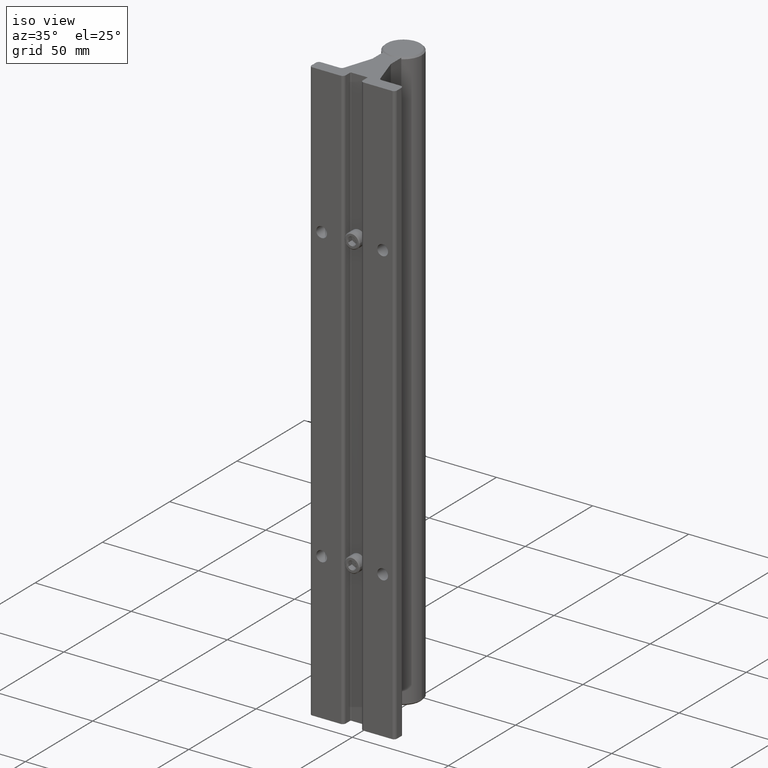
[diagram: clean part render]
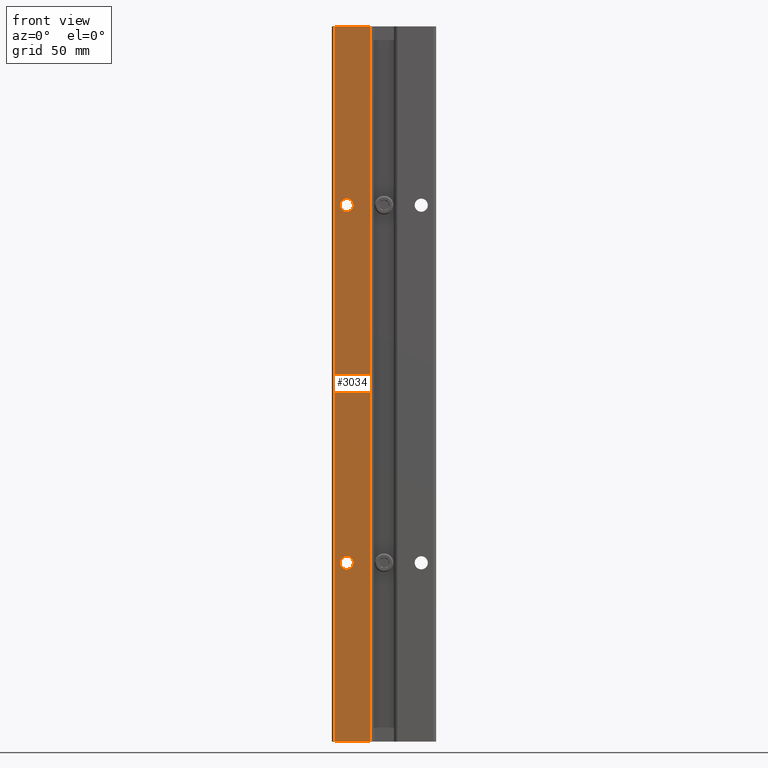
[diagram: tour spotlight — one face highlighted and labeled with its STEP entity id]
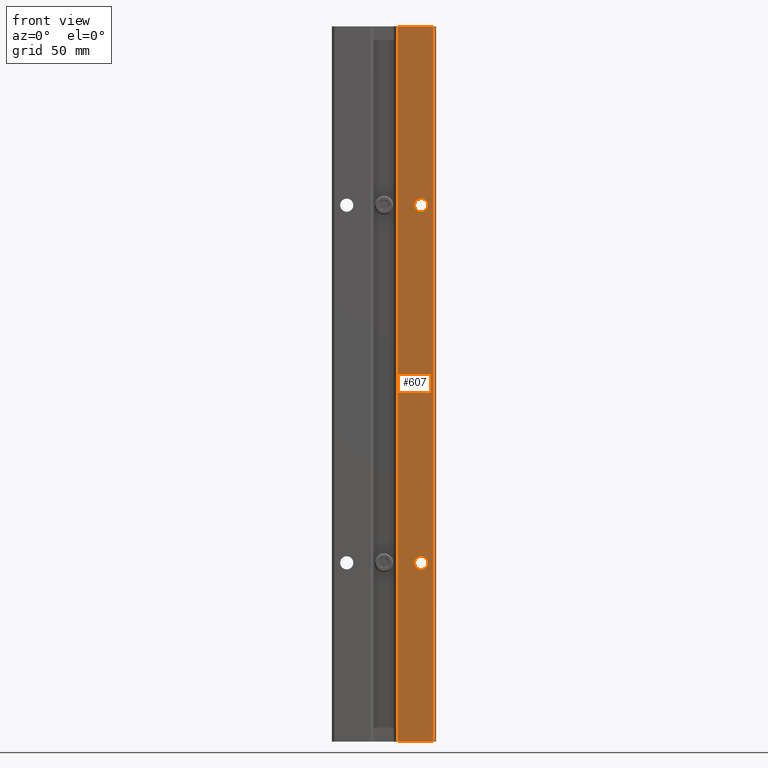
[diagram: tour spotlight — one face highlighted and labeled with its STEP entity id]
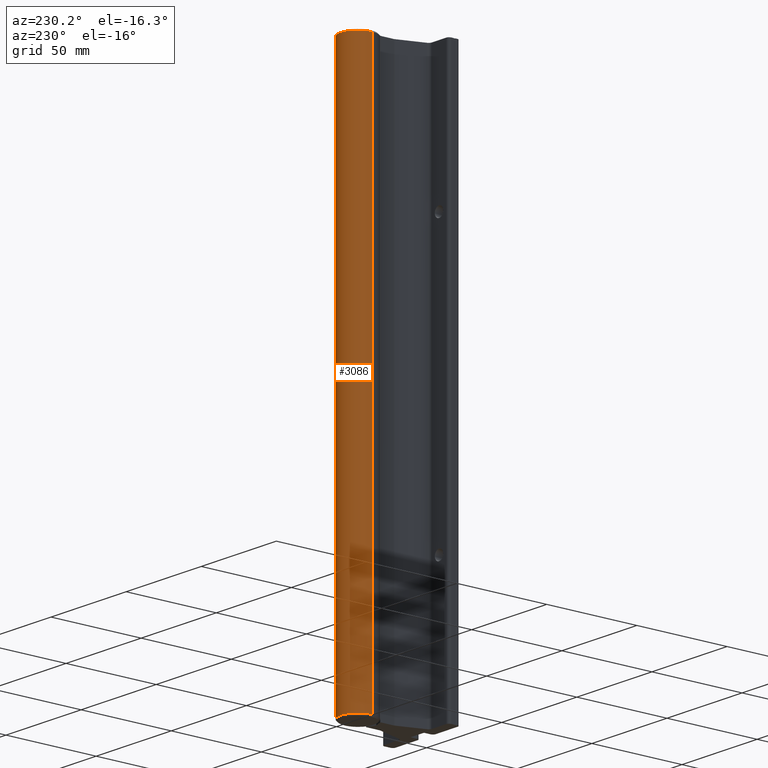
[diagram: tour spotlight — one face highlighted and labeled with its STEP entity id]
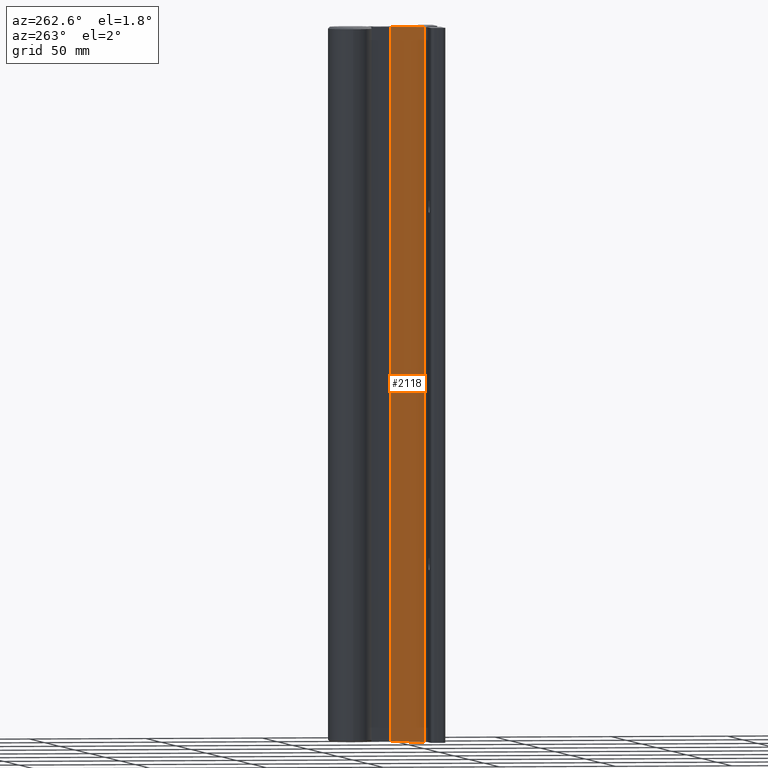
[diagram: tour spotlight — one face highlighted and labeled with its STEP entity id]
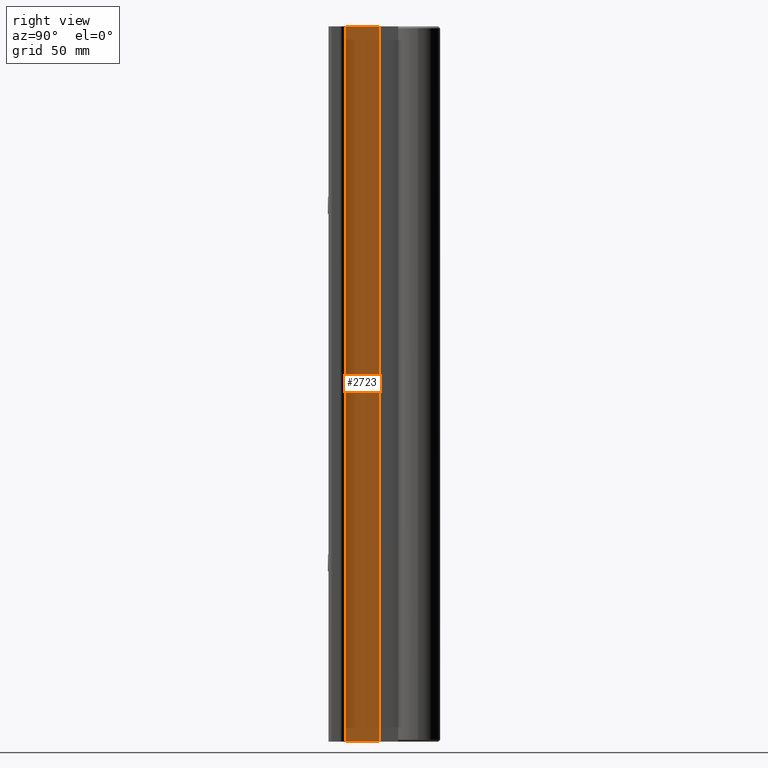
[diagram: tour spotlight — one face highlighted and labeled with its STEP entity id]
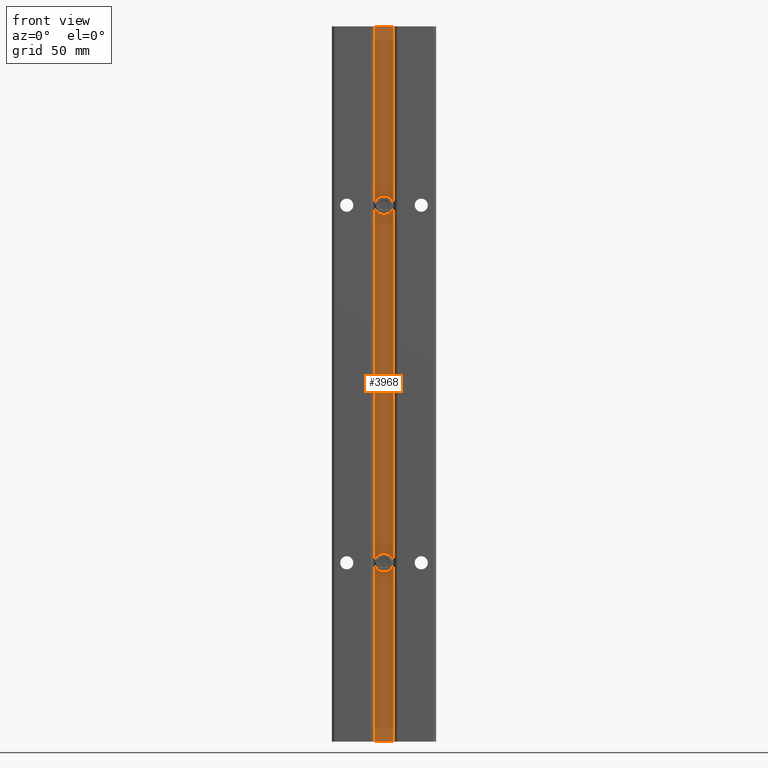
[diagram: tour spotlight — one face highlighted and labeled with its STEP entity id]
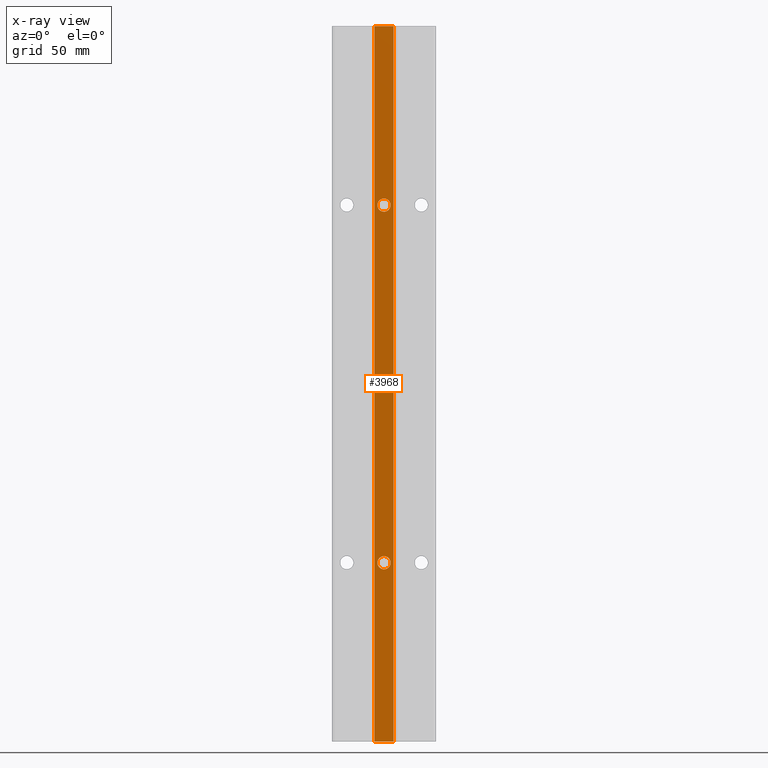
[diagram: x-ray of the same camera — body ghosted, this tour face saturated]
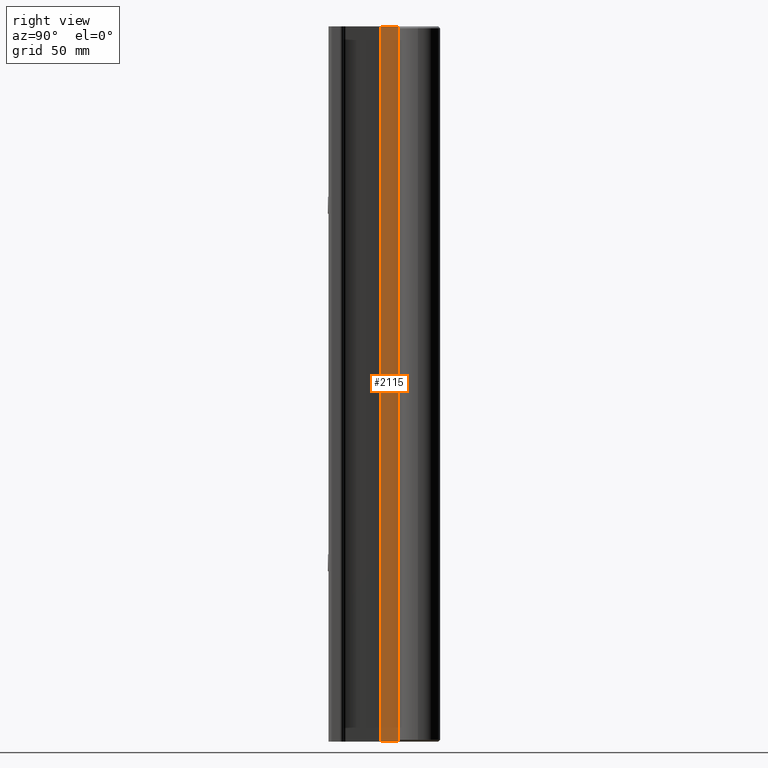
[diagram: tour spotlight — one face highlighted and labeled with its STEP entity id]
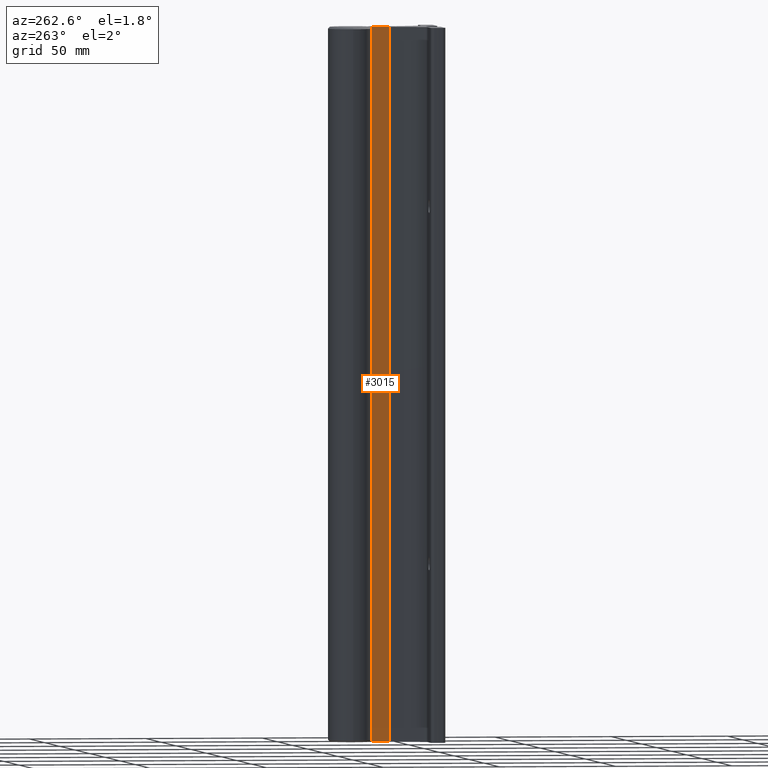
[diagram: tour spotlight — one face highlighted and labeled with its STEP entity id]
A machine part: a face-by-face anatomy tour. The part has 125 B-rep faces; the first image is the clean iso view, then the 8 largest visible faces are spotlighted one at a time (largest first), each with its STEP entity span.

Face 1 — front view, entity #3034. In plain terms, the highlighted planar face has unit normal (0, 1, 0).
Definition (entity closure, byte-faithful):
#26 = EDGE_CURVE ( 'NONE', #2960, #3686, #106, .T. ) ;
#106 = CIRCLE ( 'NONE', #3881, 0.1104999999999998206 ) ;
#176 = DIRECTION ( 'NONE',  ( 1.000000000000000000, 0.0000000000000000000, 0.0000000000000000000 ) ) ;
#275 = VECTOR ( 'NONE', #176, 39.37007874015748143 ) ;
#336 = DIRECTION ( 'NONE',  ( -1.000000000000000000, 0.0000000000000000000, 0.0000000000000000000 ) ) ;
#428 = FACE_BOUND ( 'NONE', #2647, .T. ) ;
#455 = DIRECTION ( 'NONE',  ( 0.0000000000000000000, 0.0000000000000000000, 1.000000000000000000 ) ) ;
#499 = CARTESIAN_POINT ( 'NONE',  ( -0.6250000000000000000, 0.0000000000000000000, -9.110500000000001819 ) ) ;
#697 = VERTEX_POINT ( 'NONE', #1507 ) ;
#698 = DIRECTION ( 'NONE',  ( 0.0000000000000000000, 0.0000000000000000000, 1.000000000000000000 ) ) ;
#701 = DIRECTION ( 'NONE',  ( 0.0000000000000000000, 1.000000000000000000, 0.0000000000000000000 ) ) ;
#855 = EDGE_LOOP ( 'NONE', ( #3131, #3900, #3914, #1022 ) ) ;
#883 = VERTEX_POINT ( 'NONE', #1290 ) ;
#1022 = ORIENTED_EDGE ( 'NONE', *, *, #3777, .T. ) ;
#1103 = DIRECTION ( 'NONE',  ( 0.0000000000000000000, 0.0000000000000000000, 1.000000000000000000 ) ) ;
#1130 = LINE ( 'NONE', #2072, #275 ) ;
#1149 = DIRECTION ( 'NONE',  ( 0.0000000000000000000, 1.000000000000000000, 0.0000000000000000000 ) ) ;
#1178 = LINE ( 'NONE', #3087, #2106 ) ;
#1290 = CARTESIAN_POINT ( 'NONE',  ( -0.2244203811574921603, 0.0000000000000000000, 0.0000000000000000000 ) ) ;
#1356 = AXIS2_PLACEMENT_3D ( 'NONE', #3583, #1149, #1103 ) ;
#1407 = CIRCLE ( 'NONE', #1356, 0.1104999999999998206 ) ;
#1507 = CARTESIAN_POINT ( 'NONE',  ( -0.8255796188425061910, -1.195183497228115035E-16, 0.0000000000000000000 ) ) ;
#1556 = VECTOR ( 'NONE', #455, 39.37007874015748143 ) ;
#1562 = CIRCLE ( 'NONE', #3759, 0.1104999999999998206 ) ;
#1585 = CARTESIAN_POINT ( 'NONE',  ( -0.6250000000000000000, 0.0000000000000000000, -8.889500000000001734 ) ) ;
#1692 = DIRECTION ( 'NONE',  ( 0.0000000000000000000, 1.000000000000000000, 0.0000000000000000000 ) ) ;
#1886 = EDGE_LOOP ( 'NONE', ( #3892, #3366 ) ) ;
#1977 = CARTESIAN_POINT ( 'NONE',  ( -0.6250000000000000000, 0.0000000000000000000, -2.889500000000000401 ) ) ;
#2020 = CARTESIAN_POINT ( 'NONE',  ( -0.6250000000000000000, 0.0000000000000000000, -3.000000000000000444 ) ) ;
#2072 = CARTESIAN_POINT ( 'NONE',  ( -2.500000000000000000, 0.0000000000000000000, 0.0000000000000000000 ) ) ;
#2106 = VECTOR ( 'NONE', #336, 39.37007874015748143 ) ;
#2322 = CARTESIAN_POINT ( 'NONE',  ( -0.2244203811574920215, 0.0000000000000000000, -14.10463218188033174 ) ) ;
#2427 = CARTESIAN_POINT ( 'NONE',  ( -0.2244203811574920215, 0.0000000000000000000, -12.00000000000000178 ) ) ;
#2501 = CARTESIAN_POINT ( 'NONE',  ( -0.8255796188425068571, -2.027543432797695280E-17, -12.00000000000000178 ) ) ;
#2552 = EDGE_CURVE ( 'NONE', #3396, #3558, #1407, .T. ) ;
#2571 = DIRECTION ( 'NONE',  ( 0.0000000000000000000, 0.0000000000000000000, 1.000000000000000000 ) ) ;
#2647 = EDGE_LOOP ( 'NONE', ( #3057, #3626 ) ) ;
#2724 = FACE_OUTER_BOUND ( 'NONE', #855, .T. ) ;
#2739 = EDGE_CURVE ( 'NONE', #4019, #2843, #1178, .T. ) ;
#2762 = VECTOR ( 'NONE', #698, 39.37007874015748143 ) ;
#2843 = VERTEX_POINT ( 'NONE', #2501 ) ;
#2888 = CARTESIAN_POINT ( 'NONE',  ( -0.6250000000000000000, 0.0000000000000000000, -3.000000000000000444 ) ) ;
#2892 = CARTESIAN_POINT ( 'NONE',  ( -2.500000000000000000, 0.0000000000000000000, 0.1250000000000000000 ) ) ;
#2944 = DIRECTION ( 'NONE',  ( 0.0000000000000000000, 1.000000000000000000, 0.0000000000000000000 ) ) ;
#2955 = CIRCLE ( 'NONE', #3263, 0.1104999999999998206 ) ;
#2960 = VERTEX_POINT ( 'NONE', #3459 ) ;
#3000 = FACE_BOUND ( 'NONE', #1886, .T. ) ;
#3034 = ADVANCED_FACE ( 'NONE', ( #3000, #428, #2724 ), #3243, .F. ) ;
#3057 = ORIENTED_EDGE ( 'NONE', *, *, #26, .T. ) ;
#3059 = AXIS2_PLACEMENT_3D ( 'NONE', #2892, #1692, #3874 ) ;
#3087 = CARTESIAN_POINT ( 'NONE',  ( -0.8255796188425068571, 0.0000000000000000000, -12.00000000000000178 ) ) ;
#3089 = LINE ( 'NONE', #2322, #1556 ) ;
#3131 = ORIENTED_EDGE ( 'NONE', *, *, #3324, .F. ) ;
#3165 = DIRECTION ( 'NONE',  ( 0.0000000000000000000, 1.000000000000000000, 0.0000000000000000000 ) ) ;
#3173 = EDGE_CURVE ( 'NONE', #3558, #3396, #1562, .T. ) ;
#3243 = PLANE ( 'NONE',  #3059 ) ;
#3263 = AXIS2_PLACEMENT_3D ( 'NONE', #2020, #2944, #3887 ) ;
#3304 = EDGE_CURVE ( 'NONE', #3686, #2960, #2955, .T. ) ;
#3324 = EDGE_CURVE ( 'NONE', #697, #883, #1130, .T. ) ;
#3366 = ORIENTED_EDGE ( 'NONE', *, *, #3173, .T. ) ;
#3396 = VERTEX_POINT ( 'NONE', #499 ) ;
#3459 = CARTESIAN_POINT ( 'NONE',  ( -0.6250000000000000000, 0.0000000000000000000, -3.110500000000000043 ) ) ;
#3480 = CARTESIAN_POINT ( 'NONE',  ( -0.8255796188425068571, 0.0000000000000000000, -14.10463218188033174 ) ) ;
#3558 = VERTEX_POINT ( 'NONE', #1585 ) ;
#3583 = CARTESIAN_POINT ( 'NONE',  ( -0.6250000000000000000, 0.0000000000000000000, -9.000000000000001776 ) ) ;
#3626 = ORIENTED_EDGE ( 'NONE', *, *, #3304, .T. ) ;
#3686 = VERTEX_POINT ( 'NONE', #1977 ) ;
#3735 = EDGE_CURVE ( 'NONE', #2843, #697, #3781, .T. ) ;
#3759 = AXIS2_PLACEMENT_3D ( 'NONE', #3811, #3165, #2571 ) ;
#3777 = EDGE_CURVE ( 'NONE', #4019, #883, #3089, .T. ) ;
#3781 = LINE ( 'NONE', #3480, #2762 ) ;
#3811 = CARTESIAN_POINT ( 'NONE',  ( -0.6250000000000000000, 0.0000000000000000000, -9.000000000000001776 ) ) ;
#3818 = DIRECTION ( 'NONE',  ( 0.0000000000000000000, 0.0000000000000000000, 1.000000000000000000 ) ) ;
#3874 = DIRECTION ( 'NONE',  ( 0.0000000000000000000, -0.0000000000000000000, 1.000000000000000000 ) ) ;
#3881 = AXIS2_PLACEMENT_3D ( 'NONE', #2888, #701, #3818 ) ;
#3887 = DIRECTION ( 'NONE',  ( 0.0000000000000000000, 0.0000000000000000000, 1.000000000000000000 ) ) ;
#3892 = ORIENTED_EDGE ( 'NONE', *, *, #2552, .T. ) ;
#3900 = ORIENTED_EDGE ( 'NONE', *, *, #3735, .F. ) ;
#3914 = ORIENTED_EDGE ( 'NONE', *, *, #2739, .F. ) ;
#4019 = VERTEX_POINT ( 'NONE', #2427 ) ;

Face 2 — front view, entity #607. In plain terms, the highlighted planar face has unit normal (0, 1, 0).
Definition (entity closure, byte-faithful):
#3 = CARTESIAN_POINT ( 'NONE',  ( 0.2244203811574917440, 4.268512490100411279E-18, -12.00000000000000178 ) ) ;
#72 = CARTESIAN_POINT ( 'NONE',  ( 0.2244203811574917440, 0.0000000000000000000, -12.00000000000000178 ) ) ;
#86 = VERTEX_POINT ( 'NONE', #3257 ) ;
#103 = VECTOR ( 'NONE', #351, 39.37007874015748143 ) ;
#105 = VERTEX_POINT ( 'NONE', #1395 ) ;
#109 = DIRECTION ( 'NONE',  ( 0.0000000000000000000, 0.0000000000000000000, 1.000000000000000000 ) ) ;
#141 = LINE ( 'NONE', #1329, #3339 ) ;
#207 = CARTESIAN_POINT ( 'NONE',  ( 0.6250000000000000000, 0.0000000000000000000, -2.889500000000000401 ) ) ;
#223 = EDGE_CURVE ( 'NONE', #86, #3704, #1817, .T. ) ;
#351 = DIRECTION ( 'NONE',  ( 0.0000000000000000000, 0.0000000000000000000, 1.000000000000000000 ) ) ;
#362 = DIRECTION ( 'NONE',  ( 0.0000000000000000000, 1.000000000000000000, 0.0000000000000000000 ) ) ;
#370 = CARTESIAN_POINT ( 'NONE',  ( 0.2244203811574917440, 0.0000000000000000000, -14.10463218188033174 ) ) ;
#434 = FACE_BOUND ( 'NONE', #672, .T. ) ;
#443 = DIRECTION ( 'NONE',  ( 0.0000000000000000000, -0.0000000000000000000, 1.000000000000000000 ) ) ;
#508 = EDGE_LOOP ( 'NONE', ( #679, #2270, #3504, #2215 ) ) ;
#514 = EDGE_CURVE ( 'NONE', #1157, #105, #927, .T. ) ;
#570 = ORIENTED_EDGE ( 'NONE', *, *, #2423, .T. ) ;
#577 = CARTESIAN_POINT ( 'NONE',  ( -2.500000000000000000, 0.0000000000000000000, 0.0000000000000000000 ) ) ;
#605 = VERTEX_POINT ( 'NONE', #793 ) ;
#607 = ADVANCED_FACE ( 'NONE', ( #2726, #434, #3346 ), #3512, .F. ) ;
#672 = EDGE_LOOP ( 'NONE', ( #570, #3501 ) ) ;
#679 = ORIENTED_EDGE ( 'NONE', *, *, #2075, .F. ) ;
#793 = CARTESIAN_POINT ( 'NONE',  ( 0.8255796188425064130, 0.0000000000000000000, -12.00000000000000178 ) ) ;
#819 = AXIS2_PLACEMENT_3D ( 'NONE', #2036, #2927, #109 ) ;
#927 = LINE ( 'NONE', #370, #103 ) ;
#951 = VERTEX_POINT ( 'NONE', #207 ) ;
#970 = CARTESIAN_POINT ( 'NONE',  ( 0.6250000000000000000, 0.0000000000000000000, -3.110500000000000043 ) ) ;
#995 = CARTESIAN_POINT ( 'NONE',  ( 0.8255796188425067461, 0.0000000000000000000, 0.0000000000000000000 ) ) ;
#1105 = EDGE_CURVE ( 'NONE', #3704, #86, #2384, .T. ) ;
#1110 = DIRECTION ( 'NONE',  ( 0.0000000000000000000, 1.000000000000000000, 0.0000000000000000000 ) ) ;
#1157 = VERTEX_POINT ( 'NONE', #3 ) ;
#1234 = DIRECTION ( 'NONE',  ( 0.0000000000000000000, 1.000000000000000000, 0.0000000000000000000 ) ) ;
#1265 = CIRCLE ( 'NONE', #2520, 0.1104999999999998206 ) ;
#1293 = LINE ( 'NONE', #72, #3978 ) ;
#1329 = CARTESIAN_POINT ( 'NONE',  ( 0.8255796188425064130, 0.0000000000000000000, -14.10463218188033174 ) ) ;
#1395 = CARTESIAN_POINT ( 'NONE',  ( 0.2244203811574911334, 1.109813247426106994E-16, 0.0000000000000000000 ) ) ;
#1480 = DIRECTION ( 'NONE',  ( 1.000000000000000000, 0.0000000000000000000, 0.0000000000000000000 ) ) ;
#1513 = LINE ( 'NONE', #577, #1708 ) ;
#1603 = EDGE_CURVE ( 'NONE', #605, #2943, #141, .T. ) ;
#1708 = VECTOR ( 'NONE', #1480, 39.37007874015748143 ) ;
#1728 = CARTESIAN_POINT ( 'NONE',  ( -2.500000000000000000, 0.0000000000000000000, 0.1250000000000000000 ) ) ;
#1738 = AXIS2_PLACEMENT_3D ( 'NONE', #1728, #1110, #443 ) ;
#1817 = CIRCLE ( 'NONE', #819, 0.1104999999999998206 ) ;
#1828 = CARTESIAN_POINT ( 'NONE',  ( 0.6250000000000000000, 0.0000000000000000000, -9.000000000000001776 ) ) ;
#1981 = DIRECTION ( 'NONE',  ( -1.000000000000000000, 0.0000000000000000000, 0.0000000000000000000 ) ) ;
#2036 = CARTESIAN_POINT ( 'NONE',  ( 0.6250000000000000000, 0.0000000000000000000, -9.000000000000001776 ) ) ;
#2075 = EDGE_CURVE ( 'NONE', #105, #2943, #1513, .T. ) ;
#2215 = ORIENTED_EDGE ( 'NONE', *, *, #1603, .T. ) ;
#2232 = DIRECTION ( 'NONE',  ( 0.0000000000000000000, 0.0000000000000000000, 1.000000000000000000 ) ) ;
#2270 = ORIENTED_EDGE ( 'NONE', *, *, #514, .F. ) ;
#2384 = CIRCLE ( 'NONE', #2835, 0.1104999999999998206 ) ;
#2386 = VERTEX_POINT ( 'NONE', #970 ) ;
#2423 = EDGE_CURVE ( 'NONE', #2386, #951, #2471, .T. ) ;
#2471 = CIRCLE ( 'NONE', #3216, 0.1104999999999998206 ) ;
#2520 = AXIS2_PLACEMENT_3D ( 'NONE', #2785, #3746, #3710 ) ;
#2726 = FACE_BOUND ( 'NONE', #2885, .T. ) ;
#2785 = CARTESIAN_POINT ( 'NONE',  ( 0.6250000000000000000, 0.0000000000000000000, -3.000000000000000444 ) ) ;
#2826 = EDGE_CURVE ( 'NONE', #951, #2386, #1265, .T. ) ;
#2835 = AXIS2_PLACEMENT_3D ( 'NONE', #1828, #1234, #3706 ) ;
#2849 = DIRECTION ( 'NONE',  ( 0.0000000000000000000, 0.0000000000000000000, 1.000000000000000000 ) ) ;
#2881 = CARTESIAN_POINT ( 'NONE',  ( 0.6250000000000000000, 0.0000000000000000000, -9.110500000000001819 ) ) ;
#2885 = EDGE_LOOP ( 'NONE', ( #3404, #2983 ) ) ;
#2927 = DIRECTION ( 'NONE',  ( 0.0000000000000000000, 1.000000000000000000, 0.0000000000000000000 ) ) ;
#2943 = VERTEX_POINT ( 'NONE', #995 ) ;
#2983 = ORIENTED_EDGE ( 'NONE', *, *, #223, .T. ) ;
#3110 = EDGE_CURVE ( 'NONE', #605, #1157, #1293, .T. ) ;
#3216 = AXIS2_PLACEMENT_3D ( 'NONE', #3776, #362, #2849 ) ;
#3257 = CARTESIAN_POINT ( 'NONE',  ( 0.6250000000000000000, 0.0000000000000000000, -8.889500000000001734 ) ) ;
#3339 = VECTOR ( 'NONE', #2232, 39.37007874015748143 ) ;
#3346 = FACE_OUTER_BOUND ( 'NONE', #508, .T. ) ;
#3404 = ORIENTED_EDGE ( 'NONE', *, *, #1105, .T. ) ;
#3501 = ORIENTED_EDGE ( 'NONE', *, *, #2826, .T. ) ;
#3504 = ORIENTED_EDGE ( 'NONE', *, *, #3110, .F. ) ;
#3512 = PLANE ( 'NONE',  #1738 ) ;
#3704 = VERTEX_POINT ( 'NONE', #2881 ) ;
#3706 = DIRECTION ( 'NONE',  ( 0.0000000000000000000, 0.0000000000000000000, 1.000000000000000000 ) ) ;
#3710 = DIRECTION ( 'NONE',  ( 0.0000000000000000000, 0.0000000000000000000, 1.000000000000000000 ) ) ;
#3746 = DIRECTION ( 'NONE',  ( 0.0000000000000000000, 1.000000000000000000, 0.0000000000000000000 ) ) ;
#3776 = CARTESIAN_POINT ( 'NONE',  ( 0.6250000000000000000, 0.0000000000000000000, -3.000000000000000444 ) ) ;
#3978 = VECTOR ( 'NONE', #1981, 39.37007874015748143 ) ;

Face 3 — auxiliary view, entity #3086. In plain terms, the highlighted cylindrical surface (edge-blend (fillet) strip) has radius 9.525 mm, axis along (0, 0, 1).
Definition (entity closure, byte-faithful):
#11 = VERTEX_POINT ( 'NONE', #1317 ) ;
#28 = CARTESIAN_POINT ( 'NONE',  ( 0.0000000000000000000, 1.499999999999999778, -11.96874999999999645 ) ) ;
#41 = DIRECTION ( 'NONE',  ( 1.000000000000000000, 0.0000000000000000000, 0.0000000000000000000 ) ) ;
#89 = AXIS2_PLACEMENT_3D ( 'NONE', #3127, #1602, #3425 ) ;
#160 = EDGE_CURVE ( 'NONE', #1448, #1140, #1864, .T. ) ;
#245 = CARTESIAN_POINT ( 'NONE',  ( 0.3749999999999999445, 1.499999999999999778, -0.03124999999999929223 ) ) ;
#248 = EDGE_CURVE ( 'NONE', #11, #2125, #831, .T. ) ;
#269 = CIRCLE ( 'NONE', #89, 0.3749999999999999445 ) ;
#461 = ORIENTED_EDGE ( 'NONE', *, *, #1387, .T. ) ;
#664 = CARTESIAN_POINT ( 'NONE',  ( -0.3749999999999999445, 1.499999999999999778, -11.96874999999999645 ) ) ;
#770 = DIRECTION ( 'NONE',  ( 1.000000000000000000, 0.0000000000000000000, 0.0000000000000000000 ) ) ;
#831 = LINE ( 'NONE', #2337, #2540 ) ;
#873 = EDGE_LOOP ( 'NONE', ( #461, #3617, #2867, #2779 ) ) ;
#1140 = VERTEX_POINT ( 'NONE', #3071 ) ;
#1153 = CARTESIAN_POINT ( 'NONE',  ( -0.3749999999999999445, 1.499999999999999778, -11.99999999999999822 ) ) ;
#1284 = EDGE_CURVE ( 'NONE', #1140, #2125, #269, .T. ) ;
#1317 = CARTESIAN_POINT ( 'NONE',  ( 0.3749999999999999445, 1.499999999999999778, -11.96874999999999645 ) ) ;
#1387 = EDGE_CURVE ( 'NONE', #11, #1448, #2673, .T. ) ;
#1448 = VERTEX_POINT ( 'NONE', #664 ) ;
#1521 = CYLINDRICAL_SURFACE ( 'NONE', #1753, 0.3749999999999999445 ) ;
#1602 = DIRECTION ( 'NONE',  ( 0.0000000000000000000, 0.0000000000000000000, -1.000000000000000000 ) ) ;
#1680 = DIRECTION ( 'NONE',  ( 0.0000000000000000000, 0.0000000000000000000, 1.000000000000000000 ) ) ;
#1753 = AXIS2_PLACEMENT_3D ( 'NONE', #3508, #1680, #770 ) ;
#1864 = LINE ( 'NONE', #1153, #3001 ) ;
#2125 = VERTEX_POINT ( 'NONE', #245 ) ;
#2337 = CARTESIAN_POINT ( 'NONE',  ( 0.3749999999999999445, 1.499999999999999778, -11.99999999999999822 ) ) ;
#2526 = FACE_OUTER_BOUND ( 'NONE', #873, .T. ) ;
#2540 = VECTOR ( 'NONE', #2632, 39.37007874015748143 ) ;
#2632 = DIRECTION ( 'NONE',  ( 0.0000000000000000000, 0.0000000000000000000, 1.000000000000000000 ) ) ;
#2673 = CIRCLE ( 'NONE', #2744, 0.3749999999999999445 ) ;
#2693 = DIRECTION ( 'NONE',  ( 0.0000000000000000000, 0.0000000000000000000, 1.000000000000000000 ) ) ;
#2744 = AXIS2_PLACEMENT_3D ( 'NONE', #28, #2846, #41 ) ;
#2779 = ORIENTED_EDGE ( 'NONE', *, *, #248, .F. ) ;
#2846 = DIRECTION ( 'NONE',  ( -0.0000000000000000000, -0.0000000000000000000, 1.000000000000000000 ) ) ;
#2867 = ORIENTED_EDGE ( 'NONE', *, *, #1284, .T. ) ;
#3001 = VECTOR ( 'NONE', #2693, 39.37007874015748143 ) ;
#3071 = CARTESIAN_POINT ( 'NONE',  ( -0.3749999999999999445, 1.499999999999999778, -0.03124999999999929223 ) ) ;
#3086 = ADVANCED_FACE ( 'NONE', ( #2526 ), #1521, .T. ) ;
#3127 = CARTESIAN_POINT ( 'NONE',  ( 0.0000000000000000000, 1.499999999999999778, -0.03124999999999929223 ) ) ;
#3425 = DIRECTION ( 'NONE',  ( 1.000000000000000000, 0.0000000000000000000, 0.0000000000000000000 ) ) ;
#3508 = CARTESIAN_POINT ( 'NONE',  ( 0.0000000000000000000, 1.499999999999999778, -11.99999999999999822 ) ) ;
#3617 = ORIENTED_EDGE ( 'NONE', *, *, #160, .T. ) ;

Face 4 — auxiliary view, entity #2118. In plain terms, the highlighted planar face has unit normal (-0.9511, 0.309, 0).
Definition (entity closure, byte-faithful):
#93 = DIRECTION ( 'NONE',  ( 0.3090169943511710260, 0.9510565163028790181, -0.0000000000000000000 ) ) ;
#638 = CARTESIAN_POINT ( 'NONE',  ( -0.1905589677000024129, 0.8519652309999998785, -12.00000000000000178 ) ) ;
#895 = DIRECTION ( 'NONE',  ( -0.3090169943511710260, -0.9510565163028790181, 0.0000000000000000000 ) ) ;
#925 = ORIENTED_EDGE ( 'NONE', *, *, #2707, .F. ) ;
#973 = LINE ( 'NONE', #2694, #3343 ) ;
#1082 = EDGE_CURVE ( 'NONE', #1553, #2487, #1803, .T. ) ;
#1119 = VERTEX_POINT ( 'NONE', #638 ) ;
#1124 = LINE ( 'NONE', #1699, #2234 ) ;
#1167 = DIRECTION ( 'NONE',  ( -0.3090169943511710260, -0.9510565163028790181, 0.0000000000000000000 ) ) ;
#1227 = ORIENTED_EDGE ( 'NONE', *, *, #1082, .F. ) ;
#1401 = ORIENTED_EDGE ( 'NONE', *, *, #3372, .T. ) ;
#1463 = PLANE ( 'NONE',  #1729 ) ;
#1516 = VECTOR ( 'NONE', #895, 39.37007874015748143 ) ;
#1535 = VERTEX_POINT ( 'NONE', #3125 ) ;
#1553 = VERTEX_POINT ( 'NONE', #2828 ) ;
#1699 = CARTESIAN_POINT ( 'NONE',  ( -0.1905589677000024129, 0.8519652309999998785, -12.00000000000000178 ) ) ;
#1729 = AXIS2_PLACEMENT_3D ( 'NONE', #2421, #3974, #1167 ) ;
#1803 = LINE ( 'NONE', #3684, #1516 ) ;
#1845 = CARTESIAN_POINT ( 'NONE',  ( -0.1905589677000024129, 0.8519652309999998785, -14.10463218188033174 ) ) ;
#1896 = VECTOR ( 'NONE', #3999, 39.37007874015748143 ) ;
#2047 = CARTESIAN_POINT ( 'NONE',  ( -0.3721172034000003737, 0.2931864378999993193, 0.0000000000000000000 ) ) ;
#2118 = ADVANCED_FACE ( 'NONE', ( #2325 ), #1463, .T. ) ;
#2234 = VECTOR ( 'NONE', #93, 39.37007874015748143 ) ;
#2325 = FACE_OUTER_BOUND ( 'NONE', #2666, .T. ) ;
#2421 = CARTESIAN_POINT ( 'NONE',  ( -0.1905589677000024129, 0.8519652309999998785, -14.10463218188033174 ) ) ;
#2487 = VERTEX_POINT ( 'NONE', #2047 ) ;
#2666 = EDGE_LOOP ( 'NONE', ( #3167, #1401, #1227, #925 ) ) ;
#2694 = CARTESIAN_POINT ( 'NONE',  ( -0.3721172034000003181, 0.2931864378999993193, -14.10463218188033174 ) ) ;
#2707 = EDGE_CURVE ( 'NONE', #1119, #1553, #2993, .T. ) ;
#2828 = CARTESIAN_POINT ( 'NONE',  ( -0.1905589677000024129, 0.8519652309999998785, 0.0000000000000000000 ) ) ;
#2993 = LINE ( 'NONE', #1845, #1896 ) ;
#3125 = CARTESIAN_POINT ( 'NONE',  ( -0.3721172034000003181, 0.2931864378999994303, -12.00000000000000178 ) ) ;
#3167 = ORIENTED_EDGE ( 'NONE', *, *, #3709, .F. ) ;
#3343 = VECTOR ( 'NONE', #3644, 39.37007874015748143 ) ;
#3372 = EDGE_CURVE ( 'NONE', #1535, #2487, #973, .T. ) ;
#3644 = DIRECTION ( 'NONE',  ( 0.0000000000000000000, 0.0000000000000000000, 1.000000000000000000 ) ) ;
#3684 = CARTESIAN_POINT ( 'NONE',  ( -0.1905589677000024129, 0.8519652309999998785, 0.0000000000000000000 ) ) ;
#3709 = EDGE_CURVE ( 'NONE', #1535, #1119, #1124, .T. ) ;
#3974 = DIRECTION ( 'NONE',  ( -0.9510565163028790181, 0.3090169943511710260, 0.0000000000000000000 ) ) ;
#3999 = DIRECTION ( 'NONE',  ( 0.0000000000000000000, 0.0000000000000000000, 1.000000000000000000 ) ) ;

Face 5 — right view, entity #2723. In plain terms, the highlighted planar face has unit normal (0.9511, 0.309, 0).
Definition (entity closure, byte-faithful):
#17 = CARTESIAN_POINT ( 'NONE',  ( 0.3721172034999985501, 0.2931864378999994303, -14.10463218188033174 ) ) ;
#35 = EDGE_CURVE ( 'NONE', #149, #3419, #744, .T. ) ;
#149 = VERTEX_POINT ( 'NONE', #507 ) ;
#228 = LINE ( 'NONE', #3543, #733 ) ;
#330 = FACE_OUTER_BOUND ( 'NONE', #3244, .T. ) ;
#333 = LINE ( 'NONE', #423, #2194 ) ;
#392 = ORIENTED_EDGE ( 'NONE', *, *, #568, .F. ) ;
#423 = CARTESIAN_POINT ( 'NONE',  ( 0.3721172034999985501, 0.2931864378999994303, -12.00000000000000178 ) ) ;
#467 = ORIENTED_EDGE ( 'NONE', *, *, #35, .T. ) ;
#507 = CARTESIAN_POINT ( 'NONE',  ( 0.1905589676999998316, 0.8519652309999988793, -12.00000000000000178 ) ) ;
#568 = EDGE_CURVE ( 'NONE', #632, #2556, #2732, .T. ) ;
#574 = EDGE_CURVE ( 'NONE', #149, #632, #333, .T. ) ;
#632 = VERTEX_POINT ( 'NONE', #1975 ) ;
#733 = VECTOR ( 'NONE', #2276, 39.37007874015748854 ) ;
#744 = LINE ( 'NONE', #1010, #2392 ) ;
#1010 = CARTESIAN_POINT ( 'NONE',  ( 0.1905589676999998316, 0.8519652309999988793, -14.10463218188033174 ) ) ;
#1049 = CARTESIAN_POINT ( 'NONE',  ( 0.3721172034999984390, 0.2931864378999994303, -14.10463218188033174 ) ) ;
#1379 = DIRECTION ( 'NONE',  ( 0.0000000000000000000, 0.0000000000000000000, 1.000000000000000000 ) ) ;
#1427 = DIRECTION ( 'NONE',  ( 0.0000000000000000000, 0.0000000000000000000, 1.000000000000000000 ) ) ;
#1509 = CARTESIAN_POINT ( 'NONE',  ( 0.1905589676999998316, 0.8519652309999988793, 0.0000000000000000000 ) ) ;
#1838 = EDGE_CURVE ( 'NONE', #2556, #3419, #228, .T. ) ;
#1975 = CARTESIAN_POINT ( 'NONE',  ( 0.3721172034999984390, 0.2931864378999994303, -12.00000000000000178 ) ) ;
#2049 = ORIENTED_EDGE ( 'NONE', *, *, #1838, .F. ) ;
#2094 = CARTESIAN_POINT ( 'NONE',  ( 0.3721172034999986056, 0.2931864378999994303, 0.0000000000000000000 ) ) ;
#2194 = VECTOR ( 'NONE', #2305, 39.37007874015748143 ) ;
#2276 = DIRECTION ( 'NONE',  ( -0.3090169945051225442, 0.9510565162528571426, 0.0000000000000000000 ) ) ;
#2291 = VECTOR ( 'NONE', #1379, 39.37007874015748143 ) ;
#2305 = DIRECTION ( 'NONE',  ( 0.3090169945051225442, -0.9510565162528570315, 0.0000000000000000000 ) ) ;
#2392 = VECTOR ( 'NONE', #1427, 39.37007874015748143 ) ;
#2478 = DIRECTION ( 'NONE',  ( 0.9510565162528571426, 0.3090169945051225997, -0.0000000000000000000 ) ) ;
#2491 = DIRECTION ( 'NONE',  ( -0.3090169945051225442, 0.9510565162528570315, 0.0000000000000000000 ) ) ;
#2556 = VERTEX_POINT ( 'NONE', #2094 ) ;
#2723 = ADVANCED_FACE ( 'NONE', ( #330 ), #3725, .T. ) ;
#2732 = LINE ( 'NONE', #1049, #2291 ) ;
#3185 = ORIENTED_EDGE ( 'NONE', *, *, #574, .F. ) ;
#3244 = EDGE_LOOP ( 'NONE', ( #3185, #467, #2049, #392 ) ) ;
#3419 = VERTEX_POINT ( 'NONE', #1509 ) ;
#3543 = CARTESIAN_POINT ( 'NONE',  ( 0.3721172034999985501, 0.2931864378999994303, 0.0000000000000000000 ) ) ;
#3725 = PLANE ( 'NONE',  #3825 ) ;
#3825 = AXIS2_PLACEMENT_3D ( 'NONE', #17, #2478, #2491 ) ;

Face 6 — front view, entity #3968. An x-ray twin of the same camera follows (body ghosted, this face saturated) — the face is partly hidden behind the body. In plain terms, the highlighted planar face has unit normal (-0, -1, 0).
Definition (entity closure, byte-faithful):
#1 = CARTESIAN_POINT ( 'NONE',  ( 0.0000000000000000000, 0.2050000000000004041, -9.000000000000001776 ) ) ;
#111 = CARTESIAN_POINT ( 'NONE',  ( -0.1599999999999985600, 0.2050000000000006262, 0.0000000000000000000 ) ) ;
#155 = DIRECTION ( 'NONE',  ( 1.000000000000000000, -6.180651569376158219E-16, 0.0000000000000000000 ) ) ;
#221 = PLANE ( 'NONE',  #3997 ) ;
#426 = VECTOR ( 'NONE', #2759, 39.37007874015748143 ) ;
#533 = DIRECTION ( 'NONE',  ( -6.402768735150685389E-16, -1.000000000000000000, 0.0000000000000000000 ) ) ;
#547 = DIRECTION ( 'NONE',  ( 1.000000000000000000, -6.402768735150685389E-16, 0.0000000000000000000 ) ) ;
#710 = ORIENTED_EDGE ( 'NONE', *, *, #3221, .T. ) ;
#778 = VECTOR ( 'NONE', #1655, 39.37007874015748143 ) ;
#841 = EDGE_CURVE ( 'NONE', #1755, #1528, #2814, .T. ) ;
#922 = CARTESIAN_POINT ( 'NONE',  ( -0.1599999999999985600, 0.2050000000000006539, 0.0000000000000000000 ) ) ;
#992 = EDGE_CURVE ( 'NONE', #3229, #3075, #2330, .T. ) ;
#1222 = CARTESIAN_POINT ( 'NONE',  ( -0.1599999999999985600, 0.2050000000000006539, -14.10463218188033174 ) ) ;
#1270 = LINE ( 'NONE', #1222, #426 ) ;
#1346 = VERTEX_POINT ( 'NONE', #922 ) ;
#1397 = CARTESIAN_POINT ( 'NONE',  ( 0.0000000000000000000, 0.2050000000000004041, -3.000000000000000444 ) ) ;
#1409 = AXIS2_PLACEMENT_3D ( 'NONE', #3832, #1636, #1941 ) ;
#1414 = FACE_BOUND ( 'NONE', #3008, .T. ) ;
#1440 = CARTESIAN_POINT ( 'NONE',  ( 4.372847730754427561E-32, 0.2050000000000004041, -9.110500000000001819 ) ) ;
#1528 = VERTEX_POINT ( 'NONE', #2850 ) ;
#1559 = ORIENTED_EDGE ( 'NONE', *, *, #3513, .T. ) ;
#1571 = AXIS2_PLACEMENT_3D ( 'NONE', #1, #2165, #3402 ) ;
#1598 = CARTESIAN_POINT ( 'NONE',  ( 0.1599999999999980327, 0.2050000000000004041, -14.10463218188033174 ) ) ;
#1612 = DIRECTION ( 'NONE',  ( 0.0000000000000000000, 0.0000000000000000000, 1.000000000000000000 ) ) ;
#1631 = DIRECTION ( 'NONE',  ( 6.402768735150685389E-16, 1.000000000000000000, -0.0000000000000000000 ) ) ;
#1636 = DIRECTION ( 'NONE',  ( 6.402768735150685389E-16, 1.000000000000000000, -0.0000000000000000000 ) ) ;
#1655 = DIRECTION ( 'NONE',  ( 1.000000000000000000, -6.402768735150685389E-16, 0.0000000000000000000 ) ) ;
#1657 = EDGE_CURVE ( 'NONE', #1346, #2473, #3976, .T. ) ;
#1663 = CARTESIAN_POINT ( 'NONE',  ( 0.1599999999999980327, 0.2050000000000004041, -12.00000000000000178 ) ) ;
#1678 = CARTESIAN_POINT ( 'NONE',  ( 1.353234713057833237E-17, 0.2050000000000004041, -2.889500000000000401 ) ) ;
#1755 = VERTEX_POINT ( 'NONE', #1663 ) ;
#1819 = AXIS2_PLACEMENT_3D ( 'NONE', #1397, #2328, #155 ) ;
#1832 = ORIENTED_EDGE ( 'NONE', *, *, #2255, .T. ) ;
#1837 = DIRECTION ( 'NONE',  ( -1.000000000000000000, 6.402768735150685389E-16, 0.0000000000000000000 ) ) ;
#1858 = EDGE_LOOP ( 'NONE', ( #2653, #2648, #2801, #2063 ) ) ;
#1895 = CARTESIAN_POINT ( 'NONE',  ( 0.0000000000000000000, 0.2050000000000004041, -3.000000000000000444 ) ) ;
#1941 = DIRECTION ( 'NONE',  ( 1.000000000000000000, -6.180651569376158219E-16, 0.0000000000000000000 ) ) ;
#1946 = CIRCLE ( 'NONE', #2163, 0.1105000000000000565 ) ;
#2006 = CARTESIAN_POINT ( 'NONE',  ( 4.372847730754427561E-32, 0.2050000000000004041, -3.110500000000000043 ) ) ;
#2063 = ORIENTED_EDGE ( 'NONE', *, *, #2634, .F. ) ;
#2096 = CARTESIAN_POINT ( 'NONE',  ( -0.1599999999999985600, 0.2050000000000006262, -14.10463218188033174 ) ) ;
#2163 = AXIS2_PLACEMENT_3D ( 'NONE', #1895, #1631, #3464 ) ;
#2165 = DIRECTION ( 'NONE',  ( 6.402768735150685389E-16, 1.000000000000000000, -0.0000000000000000000 ) ) ;
#2255 = EDGE_CURVE ( 'NONE', #3411, #3961, #2612, .T. ) ;
#2323 = EDGE_CURVE ( 'NONE', #1755, #2473, #3532, .T. ) ;
#2328 = DIRECTION ( 'NONE',  ( 6.402768735150685389E-16, 1.000000000000000000, -0.0000000000000000000 ) ) ;
#2330 = CIRCLE ( 'NONE', #1819, 0.1105000000000000565 ) ;
#2408 = CARTESIAN_POINT ( 'NONE',  ( 1.353234713057833237E-17, 0.2050000000000004041, -8.889500000000001734 ) ) ;
#2473 = VERTEX_POINT ( 'NONE', #3903 ) ;
#2612 = CIRCLE ( 'NONE', #1571, 0.1105000000000000565 ) ;
#2634 = EDGE_CURVE ( 'NONE', #1528, #1346, #1270, .T. ) ;
#2648 = ORIENTED_EDGE ( 'NONE', *, *, #2323, .T. ) ;
#2653 = ORIENTED_EDGE ( 'NONE', *, *, #841, .F. ) ;
#2759 = DIRECTION ( 'NONE',  ( 0.0000000000000000000, 0.0000000000000000000, 1.000000000000000000 ) ) ;
#2768 = FACE_OUTER_BOUND ( 'NONE', #1858, .T. ) ;
#2801 = ORIENTED_EDGE ( 'NONE', *, *, #1657, .F. ) ;
#2814 = LINE ( 'NONE', #3094, #2819 ) ;
#2819 = VECTOR ( 'NONE', #1837, 39.37007874015748143 ) ;
#2850 = CARTESIAN_POINT ( 'NONE',  ( -0.1599999999999985600, 0.2050000000000006539, -12.00000000000000178 ) ) ;
#2873 = ORIENTED_EDGE ( 'NONE', *, *, #992, .T. ) ;
#3008 = EDGE_LOOP ( 'NONE', ( #1559, #2873 ) ) ;
#3075 = VERTEX_POINT ( 'NONE', #2006 ) ;
#3094 = CARTESIAN_POINT ( 'NONE',  ( -0.1599999999999985600, 0.2050000000000006262, -12.00000000000000178 ) ) ;
#3221 = EDGE_CURVE ( 'NONE', #3961, #3411, #3589, .T. ) ;
#3229 = VERTEX_POINT ( 'NONE', #1678 ) ;
#3402 = DIRECTION ( 'NONE',  ( 1.000000000000000000, -6.180651569376158219E-16, 0.0000000000000000000 ) ) ;
#3411 = VERTEX_POINT ( 'NONE', #2408 ) ;
#3431 = VECTOR ( 'NONE', #1612, 39.37007874015748143 ) ;
#3464 = DIRECTION ( 'NONE',  ( 1.000000000000000000, -6.180651569376158219E-16, 0.0000000000000000000 ) ) ;
#3513 = EDGE_CURVE ( 'NONE', #3075, #3229, #1946, .T. ) ;
#3532 = LINE ( 'NONE', #1598, #3431 ) ;
#3589 = CIRCLE ( 'NONE', #1409, 0.1105000000000000565 ) ;
#3678 = FACE_BOUND ( 'NONE', #3714, .T. ) ;
#3714 = EDGE_LOOP ( 'NONE', ( #710, #1832 ) ) ;
#3832 = CARTESIAN_POINT ( 'NONE',  ( 0.0000000000000000000, 0.2050000000000004041, -9.000000000000001776 ) ) ;
#3903 = CARTESIAN_POINT ( 'NONE',  ( 0.1599999999999980327, 0.2050000000000004041, 0.0000000000000000000 ) ) ;
#3961 = VERTEX_POINT ( 'NONE', #1440 ) ;
#3968 = ADVANCED_FACE ( 'NONE', ( #3678, #1414, #2768 ), #221, .T. ) ;
#3976 = LINE ( 'NONE', #111, #778 ) ;
#3997 = AXIS2_PLACEMENT_3D ( 'NONE', #2096, #533, #547 ) ;

Face 7 — right view, entity #2115. In plain terms, the highlighted planar face has unit normal (1, 0, 0).
Definition (entity closure, byte-faithful):
#82 = DIRECTION ( 'NONE',  ( 0.0000000000000000000, 0.0000000000000000000, 1.000000000000000000 ) ) ;
#249 = CARTESIAN_POINT ( 'NONE',  ( 0.1874999999999998335, 0.8712787932000009006, -12.00000000000000178 ) ) ;
#255 = PLANE ( 'NONE',  #2752 ) ;
#417 = CARTESIAN_POINT ( 'NONE',  ( 0.1874999999999996947, 1.169177754238574174, -14.10463218188033174 ) ) ;
#651 = CARTESIAN_POINT ( 'NONE',  ( 0.1874999999999998335, 0.8712787932000009006, -14.10463218188033174 ) ) ;
#731 = CARTESIAN_POINT ( 'NONE',  ( 0.1874999999999996947, 1.169177754238574174, -12.00000000000000178 ) ) ;
#845 = DIRECTION ( 'NONE',  ( 1.000000000000000000, 4.585192214400725306E-16, -0.0000000000000000000 ) ) ;
#1064 = CARTESIAN_POINT ( 'NONE',  ( 0.1874999999999996947, 1.169177754238574396, 0.0000000000000000000 ) ) ;
#1084 = VECTOR ( 'NONE', #2233, 39.37007874015748143 ) ;
#1172 = LINE ( 'NONE', #651, #2577 ) ;
#1263 = FACE_OUTER_BOUND ( 'NONE', #3705, .T. ) ;
#1412 = ORIENTED_EDGE ( 'NONE', *, *, #2691, .F. ) ;
#1417 = EDGE_CURVE ( 'NONE', #2766, #3666, #1812, .T. ) ;
#1578 = CARTESIAN_POINT ( 'NONE',  ( 0.1874999999999998335, 0.8712787932000009006, 0.0000000000000000000 ) ) ;
#1812 = LINE ( 'NONE', #1578, #1084 ) ;
#1869 = CARTESIAN_POINT ( 'NONE',  ( 0.1874999999999998335, 0.8712787932000009006, 0.0000000000000000000 ) ) ;
#2092 = ORIENTED_EDGE ( 'NONE', *, *, #1417, .F. ) ;
#2115 = ADVANCED_FACE ( 'NONE', ( #1263 ), #255, .T. ) ;
#2117 = DIRECTION ( 'NONE',  ( -4.585192214400725306E-16, 1.000000000000000000, 0.0000000000000000000 ) ) ;
#2233 = DIRECTION ( 'NONE',  ( -4.585192214400725306E-16, 1.000000000000000000, 0.0000000000000000000 ) ) ;
#2444 = DIRECTION ( 'NONE',  ( 4.585192214400725306E-16, -1.000000000000000000, 0.0000000000000000000 ) ) ;
#2577 = VECTOR ( 'NONE', #82, 39.37007874015748143 ) ;
#2618 = CARTESIAN_POINT ( 'NONE',  ( 0.1874999999999998335, 0.8712787932000009006, -12.00000000000000178 ) ) ;
#2691 = EDGE_CURVE ( 'NONE', #3037, #3801, #2911, .T. ) ;
#2701 = ORIENTED_EDGE ( 'NONE', *, *, #3033, .T. ) ;
#2752 = AXIS2_PLACEMENT_3D ( 'NONE', #3347, #845, #2117 ) ;
#2766 = VERTEX_POINT ( 'NONE', #1869 ) ;
#2812 = LINE ( 'NONE', #417, #3542 ) ;
#2883 = EDGE_CURVE ( 'NONE', #3801, #2766, #1172, .T. ) ;
#2911 = LINE ( 'NONE', #249, #3937 ) ;
#2945 = DIRECTION ( 'NONE',  ( 0.0000000000000000000, 0.0000000000000000000, 1.000000000000000000 ) ) ;
#3033 = EDGE_CURVE ( 'NONE', #3037, #3666, #2812, .T. ) ;
#3037 = VERTEX_POINT ( 'NONE', #731 ) ;
#3347 = CARTESIAN_POINT ( 'NONE',  ( 0.1874999999999998335, 0.8712787932000009006, -14.10463218188033174 ) ) ;
#3406 = ORIENTED_EDGE ( 'NONE', *, *, #2883, .F. ) ;
#3542 = VECTOR ( 'NONE', #2945, 39.37007874015748143 ) ;
#3666 = VERTEX_POINT ( 'NONE', #1064 ) ;
#3705 = EDGE_LOOP ( 'NONE', ( #1412, #2701, #2092, #3406 ) ) ;
#3801 = VERTEX_POINT ( 'NONE', #2618 ) ;
#3937 = VECTOR ( 'NONE', #2444, 39.37007874015748143 ) ;

Face 8 — auxiliary view, entity #3015. In plain terms, the highlighted planar face has unit normal (-1, 0, 0).
Definition (entity closure, byte-faithful):
#143 = VECTOR ( 'NONE', #714, 39.37007874015748143 ) ;
#231 = LINE ( 'NONE', #1057, #143 ) ;
#252 = EDGE_LOOP ( 'NONE', ( #286, #2796, #1422, #3446 ) ) ;
#286 = ORIENTED_EDGE ( 'NONE', *, *, #3952, .F. ) ;
#376 = VECTOR ( 'NONE', #881, 39.37007874015748143 ) ;
#394 = CARTESIAN_POINT ( 'NONE',  ( -0.1875000000000004718, 0.8712787932000006785, -12.00000000000000178 ) ) ;
#425 = LINE ( 'NONE', #2725, #480 ) ;
#471 = CARTESIAN_POINT ( 'NONE',  ( -0.1875000000000004718, 0.8712787932000009006, 0.0000000000000000000 ) ) ;
#480 = VECTOR ( 'NONE', #3992, 39.37007874015748143 ) ;
#501 = DIRECTION ( 'NONE',  ( 9.170384428801442724E-16, 1.000000000000000000, -0.0000000000000000000 ) ) ;
#714 = DIRECTION ( 'NONE',  ( -9.170384428801442724E-16, -1.000000000000000000, 0.0000000000000000000 ) ) ;
#748 = DIRECTION ( 'NONE',  ( -1.000000000000000000, 9.170384428801442724E-16, 0.0000000000000000000 ) ) ;
#787 = DIRECTION ( 'NONE',  ( -9.170384428801442724E-16, -1.000000000000000000, 0.0000000000000000000 ) ) ;
#822 = CARTESIAN_POINT ( 'NONE',  ( -0.1875000000000001943, 1.169177754238574618, -12.00000000000000178 ) ) ;
#881 = DIRECTION ( 'NONE',  ( 0.0000000000000000000, 0.0000000000000000000, 1.000000000000000000 ) ) ;
#956 = EDGE_CURVE ( 'NONE', #2563, #3796, #2431, .T. ) ;
#1057 = CARTESIAN_POINT ( 'NONE',  ( -0.1875000000000001943, 1.169177754238574618, 0.0000000000000000000 ) ) ;
#1095 = PLANE ( 'NONE',  #3136 ) ;
#1422 = ORIENTED_EDGE ( 'NONE', *, *, #3247, .F. ) ;
#1721 = CARTESIAN_POINT ( 'NONE',  ( -0.1875000000000001943, 1.169177754238574618, -14.10463218188033174 ) ) ;
#2013 = CARTESIAN_POINT ( 'NONE',  ( -0.1875000000000001943, 1.169177754238574618, 0.0000000000000000000 ) ) ;
#2016 = VERTEX_POINT ( 'NONE', #471 ) ;
#2090 = VECTOR ( 'NONE', #501, 39.37007874015748143 ) ;
#2406 = CARTESIAN_POINT ( 'NONE',  ( -0.1875000000000001943, 1.169177754238574618, -14.10463218188033174 ) ) ;
#2431 = LINE ( 'NONE', #2406, #376 ) ;
#2563 = VERTEX_POINT ( 'NONE', #822 ) ;
#2689 = EDGE_CURVE ( 'NONE', #2981, #2016, #425, .T. ) ;
#2725 = CARTESIAN_POINT ( 'NONE',  ( -0.1875000000000004718, 0.8712787932000009006, -14.10463218188033174 ) ) ;
#2796 = ORIENTED_EDGE ( 'NONE', *, *, #2689, .T. ) ;
#2981 = VERTEX_POINT ( 'NONE', #394 ) ;
#3015 = ADVANCED_FACE ( 'NONE', ( #3838 ), #1095, .T. ) ;
#3136 = AXIS2_PLACEMENT_3D ( 'NONE', #1721, #748, #787 ) ;
#3247 = EDGE_CURVE ( 'NONE', #3796, #2016, #231, .T. ) ;
#3446 = ORIENTED_EDGE ( 'NONE', *, *, #956, .F. ) ;
#3647 = CARTESIAN_POINT ( 'NONE',  ( -0.1875000000000001943, 1.169177754238574618, -12.00000000000000178 ) ) ;
#3716 = LINE ( 'NONE', #3647, #2090 ) ;
#3796 = VERTEX_POINT ( 'NONE', #2013 ) ;
#3838 = FACE_OUTER_BOUND ( 'NONE', #252, .T. ) ;
#3952 = EDGE_CURVE ( 'NONE', #2981, #2563, #3716, .T. ) ;
#3992 = DIRECTION ( 'NONE',  ( 0.0000000000000000000, 0.0000000000000000000, 1.000000000000000000 ) ) ;